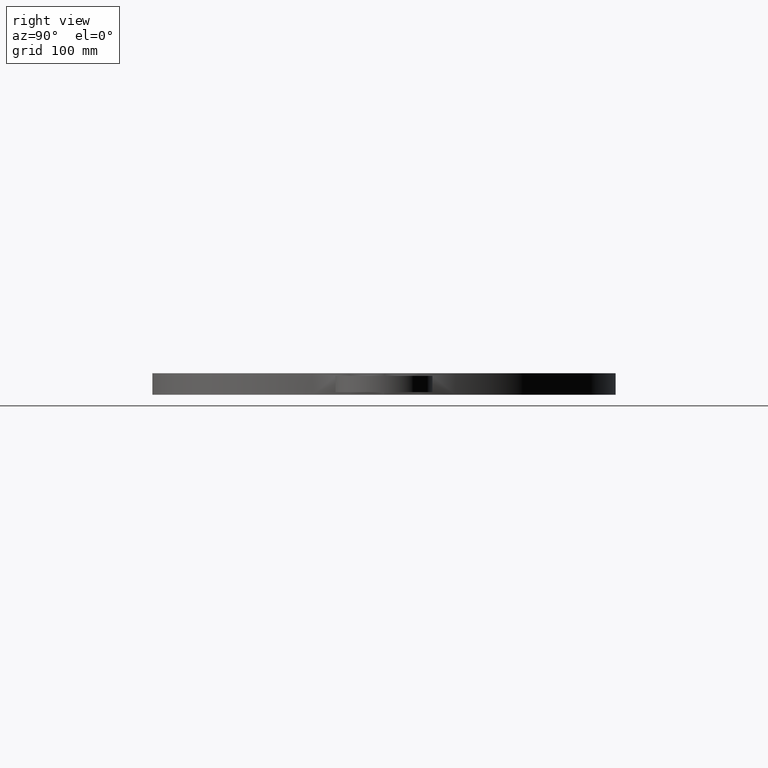
[diagram: clean part render]
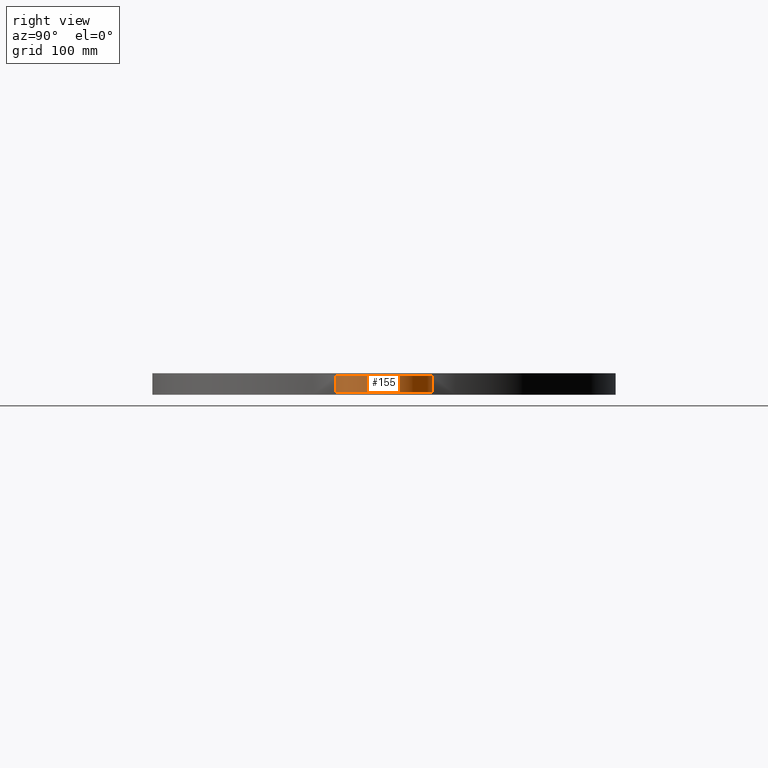
[diagram: same view with one face highlighted and labeled with its STEP entity id]
A machine part, right view. The second image highlights one B-rep face of the part: STEP entity #155.
In plain terms, the highlighted cylindrical surface (partial cylindrical patch) has radius 57.15 mm, axis along (0, 0, 1).
Its self-contained STEP definition (entity closure, byte-faithful):
#103=AXIS2_PLACEMENT_3D('Circle Axis2P3D',#101,#102,$) ;
#135=AXIS2_PLACEMENT_3D('Cylinder Axis2P3D',#132,#133,#134) ;
#146=AXIS2_PLACEMENT_3D('Circle Axis2P3D',#144,#145,$) ;
#53=CARTESIAN_POINT('Vertex',(13.2618980209,-2.25000000001,-0.375000000001)) ;
#56=CARTESIAN_POINT('Line Origine',(13.2618980209,-2.25000000001,0.)) ;
#60=CARTESIAN_POINT('Vertex',(13.2618980209,-2.25000000001,0.375000000001)) ;
#98=CARTESIAN_POINT('Vertex',(13.2618980209,2.25000000001,-0.375000000001)) ;
#101=CARTESIAN_POINT('Axis2P3D Location',(13.2618980209,0.,-0.375000000001)) ;
#132=CARTESIAN_POINT('Axis2P3D Location',(13.2618980209,0.,0.)) ;
#137=CARTESIAN_POINT('Line Origine',(13.2618980209,2.25000000001,0.)) ;
#141=CARTESIAN_POINT('Vertex',(13.2618980209,2.25000000001,0.375000000001)) ;
#144=CARTESIAN_POINT('Axis2P3D Location',(13.2618980209,0.,0.375000000001)) ;
#57=DIRECTION('Vector Direction',(0.,0.,0.0393700787402)) ;
#102=DIRECTION('Axis2P3D Direction',(0.,0.,0.0393700787402)) ;
#133=DIRECTION('Axis2P3D Direction',(0.,0.,0.0393700787402)) ;
#134=DIRECTION('Axis2P3D XDirection',(-7.2321661367E-018,-0.0393700787402,-0.)) ;
#138=DIRECTION('Vector Direction',(0.,0.,0.0393700787402)) ;
#145=DIRECTION('Axis2P3D Direction',(0.,0.,0.0393700787402)) ;
#58=VECTOR('Line Direction',#57,0.0393700787402) ;
#139=VECTOR('Line Direction',#138,0.0393700787402) ;
#150=ORIENTED_EDGE('',*,*,#62,.F.) ;
#151=ORIENTED_EDGE('',*,*,#105,.T.) ;
#152=ORIENTED_EDGE('',*,*,#143,.T.) ;
#153=ORIENTED_EDGE('',*,*,#148,.F.) ;
#155=ADVANCED_FACE('PartBody',(#154),#136,.T.) ;
#104=CIRCLE('generated circle',#103,2.25000000001) ;
#147=CIRCLE('generated circle',#146,2.25000000001) ;
#136=CYLINDRICAL_SURFACE('generated cylinder',#135,2.25000000001) ;
#62=EDGE_CURVE('',#54,#61,#59,.T.) ;
#105=EDGE_CURVE('',#54,#99,#104,.T.) ;
#143=EDGE_CURVE('',#99,#142,#140,.T.) ;
#148=EDGE_CURVE('',#61,#142,#147,.T.) ;
#149=EDGE_LOOP('',(#150,#151,#152,#153)) ;
#154=FACE_OUTER_BOUND('',#149,.T.) ;
#59=LINE('Line',#56,#58) ;
#140=LINE('Line',#137,#139) ;
#54=VERTEX_POINT('',#53) ;
#61=VERTEX_POINT('',#60) ;
#99=VERTEX_POINT('',#98) ;
#142=VERTEX_POINT('',#141) ;